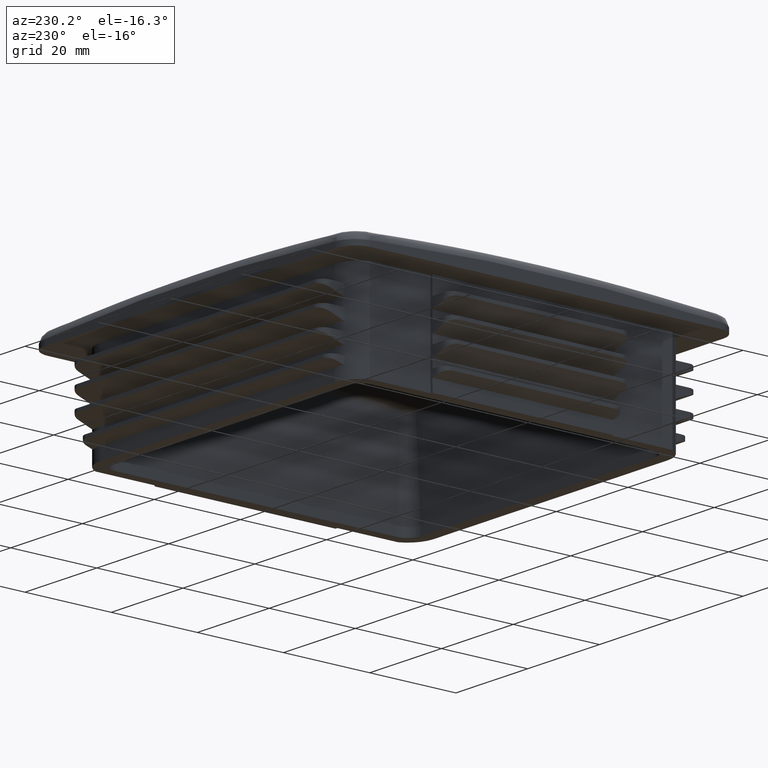
[diagram: clean part render]
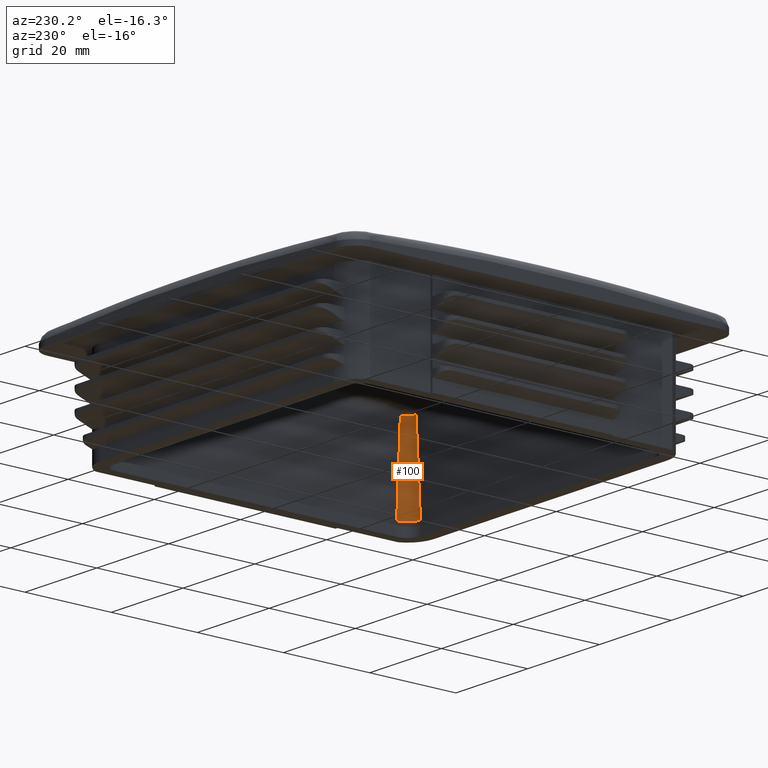
[diagram: same view with one face highlighted and labeled with its STEP entity id]
A machine part, auxiliary view. The second image highlights one B-rep face of the part: STEP entity #100.
In plain terms, the highlighted conical surface has half-angle 3 deg.
Its self-contained STEP definition (entity closure, byte-faithful):
#100 = ADVANCED_FACE( '', ( #372 ), #373, .F. );
#372 = FACE_OUTER_BOUND( '', #1924, .T. );
#373 = CONICAL_SURFACE( '', #1925, 3.00000000000002, 0.0523598775598299 );
#1924 = EDGE_LOOP( '', ( #3704, #3705, #3706, #3707 ) );
#1925 = AXIS2_PLACEMENT_3D( '', #3708, #3709, #3710 );
#3704 = ORIENTED_EDGE( '', *, *, #5621, .F. );
#3705 = ORIENTED_EDGE( '', *, *, #5622, .T. );
#3706 = ORIENTED_EDGE( '', *, *, #5623, .T. );
#3707 = ORIENTED_EDGE( '', *, *, #5624, .F. );
#3708 = CARTESIAN_POINT( '', ( 32.7000000000000, -32.7000000000000, 3.00000000000000 ) );
#3709 = DIRECTION( '', ( 0.000000000000000, 0.000000000000000, -1.00000000000000 ) );
#3710 = DIRECTION( '', ( 1.00000000000000, 0.000000000000000, 0.000000000000000 ) );
#5621 = EDGE_CURVE( '', #6359, #6360, #6361, .T. );
#5622 = EDGE_CURVE( '', #6359, #6362, #6363, .T. );
#5623 = EDGE_CURVE( '', #6362, #6364, #6365, .T. );
#5624 = EDGE_CURVE( '', #6360, #6364, #6366, .T. );
#6359 = VERTEX_POINT( '', #8445 );
#6360 = VERTEX_POINT( '', #8446 );
#6361 = LINE( '', #8447, #8448 );
#6362 = VERTEX_POINT( '', #8449 );
#6363 = B_SPLINE_CURVE_WITH_KNOTS( '', 3, ( #8450, #8451, #8452, #8453, #8454, #8455, #8456, #8457, #8458, #8459, #8460, #8461, #8462, #8463, #8464, #8465, #8466, #8467, #8468, #8469, #8470, #8471, #8472, #8473, #8474, #8475, #8476, #8477, #8478, #8479, #8480, #8481, #8482, #8483, #8484, #8485, #8486, #8487, #8488, #8489, #8490, #8491, #8492 ), .UNSPECIFIED., .F., .F., ( 4, 1, 1, 2, 1, 2, 2, 2, 1, 2, 1, 2, 2, 1, 1, 2, 2, 2, 2, 1, 2, 1, 2, 2, 1, 1, 4 ), ( 0.000000000000000, 0.000193762412864697, 0.000387524825729394, 0.000581287238594091, 0.000629727841810268, 0.000653948143418349, 0.000678168445026431, 0.000775049651458778, 0.000968812064323499, 0.00116257447718822, 0.00125945568362058, 0.00130789628683675, 0.00135633689005292, 0.00155009930291766, 0.00174386171578239, 0.00193762412864713, 0.00198606473186331, 0.00203450533507949, 0.00213138654151183, 0.00232514895437653, 0.00251891136724122, 0.00261579257367357, 0.00264001287528167, 0.00266423317688976, 0.00271267378010593, 0.00290643619297066, 0.00310019860583539 ), .UNSPECIFIED. );
#6364 = VERTEX_POINT( '', #8493 );
#6365 = LINE( '', #8494, #8495 );
#6366 = CIRCLE( '', #8496, 3.00000000000000 );
#8445 = CARTESIAN_POINT( '', ( 32.7000000000000, -34.6834295270022, 22.3973201479794 ) );
#8446 = CARTESIAN_POINT( '', ( 32.7000000000000, -35.7000000000000, 3.00000000000000 ) );
#8447 = CARTESIAN_POINT( '', ( 32.7000000000000, -35.7000000000000, 3.00000000000000 ) );
#8448 = VECTOR( '', #10877, 1000.00000000000 );
#8449 = CARTESIAN_POINT( '', ( 34.6834295270022, -32.7000000000000, 22.3973201479793 ) );
#8450 = CARTESIAN_POINT( '', ( 32.7000000000000, -34.6834295270022, 22.3973201479794 ) );
#8451 = CARTESIAN_POINT( '', ( 32.7654873336560, -34.6835228915227, 22.3955386468028 ) );
#8452 = CARTESIAN_POINT( '', ( 32.8953761694793, -34.6772297187204, 22.3921803865374 ) );
#8453 = CARTESIAN_POINT( '', ( 33.0870635647641, -34.6490163724726, 22.3877368443880 ) );
#8454 = CARTESIAN_POINT( '', ( 33.2127702489629, -34.6177652527223, 22.3851684826262 ) );
#8455 = CARTESIAN_POINT( '', ( 33.2906702278302, -34.5942545992870, 22.3836893732581 ) );
#8456 = CARTESIAN_POINT( '', ( 33.3139901032044, -34.5869023089538, 22.3832551210709 ) );
#8457 = CARTESIAN_POINT( '', ( 33.3372340144656, -34.5790966819706, 22.3828352419680 ) );
#8458 = CARTESIAN_POINT( '', ( 33.3527129709538, -34.5737915718242, 22.3825585365182 ) );
#8459 = CARTESIAN_POINT( '', ( 33.3604452828657, -34.5710877810003, 22.3824217698366 ) );
#8460 = CARTESIAN_POINT( '', ( 33.3989564896166, -34.5573530863555, 22.3817478824700 ) );
#8461 = CARTESIAN_POINT( '', ( 33.4293702503744, -34.5456465605503, 22.3812390355385 ) );
#8462 = CARTESIAN_POINT( '', ( 33.5194496149719, -34.5084137692232, 22.3798015006934 ) );
#8463 = CARTESIAN_POINT( '', ( 33.6364625646893, -34.4531449540644, 22.3781217119756 ) );
#8464 = CARTESIAN_POINT( '', ( 33.7474010558865, -34.3868283358460, 22.3769075294347 ) );
#8465 = CARTESIAN_POINT( '', ( 33.8283025656294, -34.3329035004732, 22.3761734476045 ) );
#8466 = CARTESIAN_POINT( '', ( 33.8681767102539, -34.3048923837030, 22.3758506232769 ) );
#8467 = CARTESIAN_POINT( '', ( 33.9071716956788, -34.2752823123673, 22.3755952269862 ) );
#8468 = CARTESIAN_POINT( '', ( 33.9329706852049, -34.2551827608117, 22.3754401240161 ) );
#8469 = CARTESIAN_POINT( '', ( 33.9457759059099, -34.2449487356634, 22.3753701514592 ) );
#8470 = CARTESIAN_POINT( '', ( 34.0089515003236, -34.1931638733056, 22.3750601618280 ) );
#8471 = CARTESIAN_POINT( '', ( 34.1051742258563, -34.1059482036421, 22.3748150308719 ) );
#8472 = CARTESIAN_POINT( '', ( 34.2353713814349, -33.9624378716617, 22.3751773546036 ) );
#8473 = CARTESIAN_POINT( '', ( 34.3127605163967, -33.8583204793324, 22.3759047327179 ) );
#8474 = CARTESIAN_POINT( '', ( 34.3581068056365, -33.7905351643184, 22.3765153385510 ) );
#8475 = CARTESIAN_POINT( '', ( 34.3670246122487, -33.7768421852826, 22.3766452776693 ) );
#8476 = CARTESIAN_POINT( '', ( 34.3845538071697, -33.7491812399477, 22.3769209718297 ) );
#8477 = CARTESIAN_POINT( '', ( 34.3931358231573, -33.7352592957459, 22.3770662738113 ) );
#8478 = CARTESIAN_POINT( '', ( 34.4183067189004, -33.6932755528130, 22.3775237503796 ) );
#8479 = CARTESIAN_POINT( '', ( 34.4343355254060, -33.6649728047018, 22.3778577122582 ) );
#8480 = CARTESIAN_POINT( '', ( 34.4802065160834, -33.5791404625944, 22.3789449690498 ) );
#8481 = CARTESIAN_POINT( '', ( 34.5354704844364, -33.4622374411834, 22.3806218999639 ) );
#8482 = CARTESIAN_POINT( '', ( 34.5791007071410, -33.3404817573919, 22.3827468579534 ) );
#8483 = CARTESIAN_POINT( '', ( 34.6073942821591, -33.2473175317509, 22.3845110143666 ) );
#8484 = CARTESIAN_POINT( '', ( 34.6182589028603, -33.2081135316576, 22.3852816503145 ) );
#8485 = CARTESIAN_POINT( '', ( 34.6279463575156, -33.1684185117678, 22.3860975656376 ) );
#8486 = CARTESIAN_POINT( '', ( 34.6317265132668, -33.1525009499141, 22.3864275788051 ) );
#8487 = CARTESIAN_POINT( '', ( 34.6335696453795, -33.1445201517611, 22.3865944571149 ) );
#8488 = CARTESIAN_POINT( '', ( 34.6389438856728, -33.1205735537056, 22.3870994143236 ) );
#8489 = CARTESIAN_POINT( '', ( 34.6558431266429, -33.0406368837032, 22.3888132464099 ) );
#8490 = CARTESIAN_POINT( '', ( 34.6772288741662, -32.8957302173475, 22.3921707906310 ) );
#8491 = CARTESIAN_POINT( '', ( 34.6835228917658, -32.7654875042203, 22.3955386421627 ) );
#8492 = CARTESIAN_POINT( '', ( 34.6834295270022, -32.7000000000000, 22.3973201479793 ) );
#8493 = CARTESIAN_POINT( '', ( 35.7000000000000, -32.7000000000000, 3.00000000000000 ) );
#8494 = CARTESIAN_POINT( '', ( 35.7000000000000, -32.7000000000000, 3.00000000000000 ) );
#8495 = VECTOR( '', #10878, 1000.00000000000 );
#8496 = AXIS2_PLACEMENT_3D( '', #10879, #10880, #10881 );
#10877 = DIRECTION( '', ( 0.000000000000000, -0.0523359562429438, -0.998629534754574 ) );
#10878 = DIRECTION( '', ( 0.0523359562429438, 0.000000000000000, -0.998629534754574 ) );
#10879 = CARTESIAN_POINT( '', ( 32.7000000000000, -32.7000000000000, 3.00000000000000 ) );
#10880 = DIRECTION( '', ( 0.000000000000000, 0.000000000000000, 1.00000000000000 ) );
#10881 = DIRECTION( '', ( 0.000000000000000, -1.00000000000000, 0.000000000000000 ) );